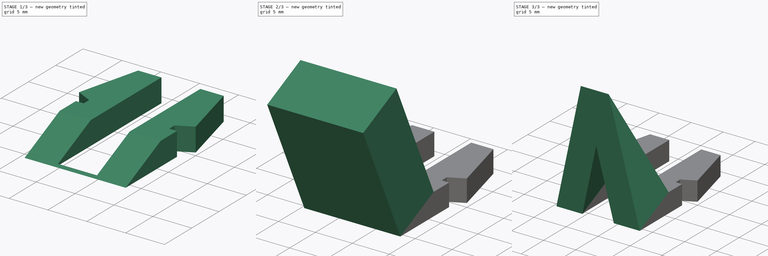
[diagram: build sequence overview — one tinted view per stage of 3, left to right]
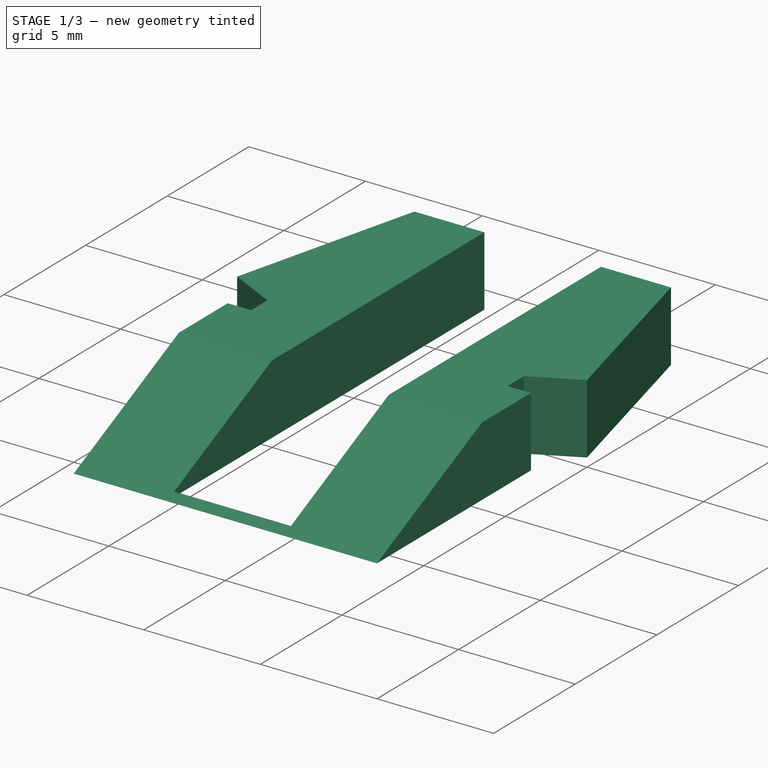
[diagram: stage 1 of 3 — iso view after this stage's code; geometry added in this stage tinted green]
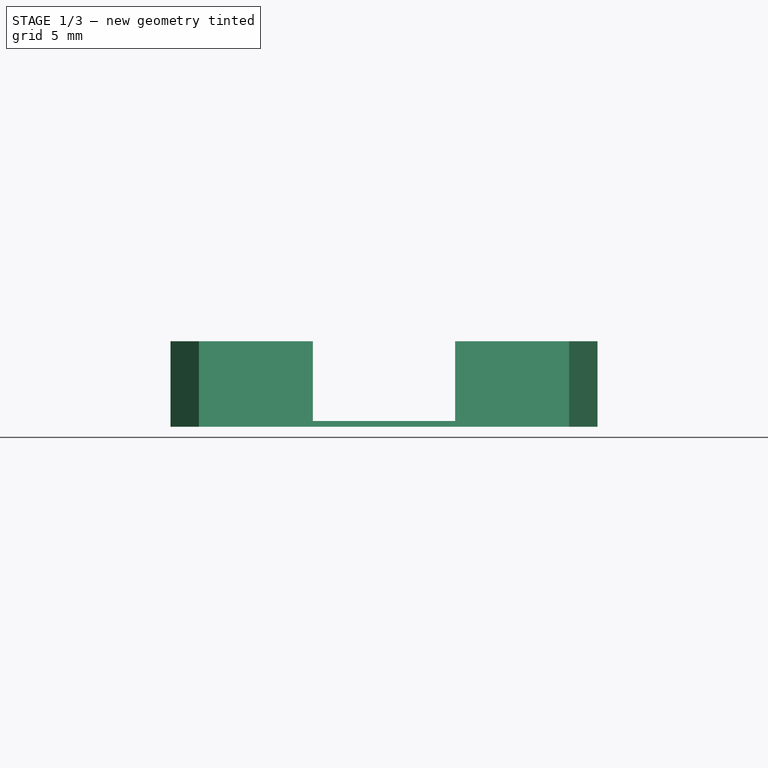
[diagram: stage 1 of 3 — front view after this stage's code; geometry added in this stage tinted green]
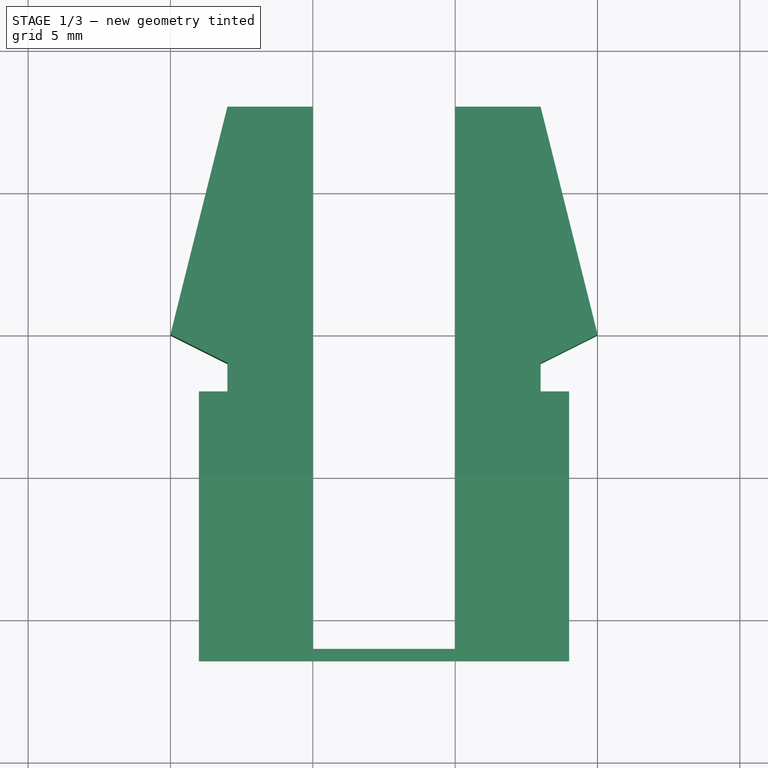
[diagram: stage 1 of 3 — top view after this stage's code; geometry added in this stage tinted green]
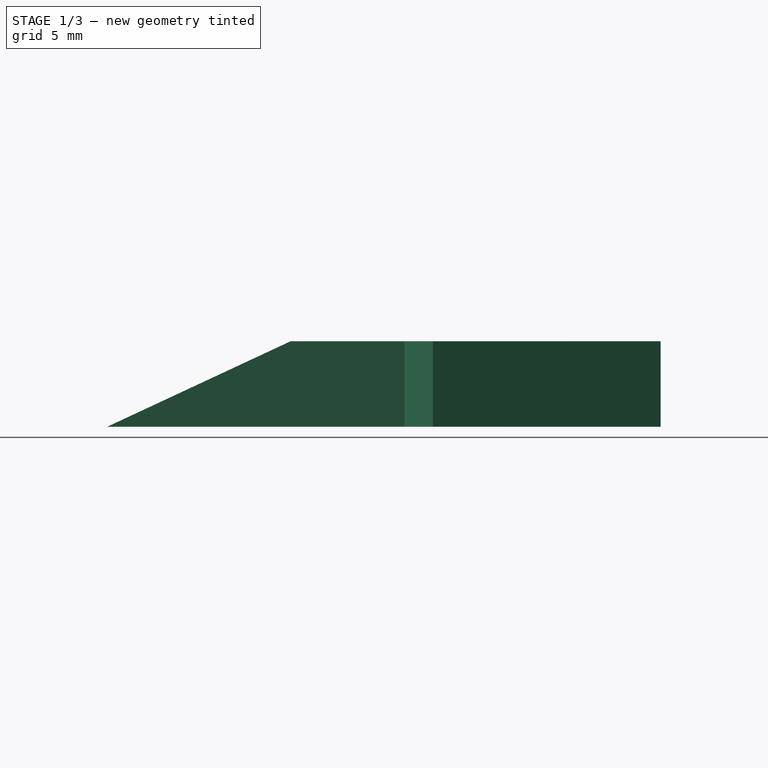
[diagram: stage 1 of 3 — right view after this stage's code; geometry added in this stage tinted green]
FCSTD DOCUMENT  (FreeCAD 0.20R)
Label: plafon_holder_clip
License: All rights reserved
LicenseURL: http://en.wikipedia.org/wiki/All_rights_reserved
objects: Sketcher::SketchObject×5, PartDesign::Pocket×3, PartDesign::Pad×2, PartDesign::Body×1
note: 16 computed .brp shape members not serialized (recipe doc carries the construction recipe); baked Part::Feature solids carry a one-line shape summary decoded from their .brp

FEATURE [Sketcher::SketchObject] Sketch
  FullyConstrained = true
  MapMode = 5
  Support = -> [XY_Plane]
  sketch-geometry (26):
    g0: LineSegment StartX=0 StartY=0 StartZ=0 EndX=2 EndY=8 EndZ=0
    g1: LineSegment StartX=2 StartY=8 StartZ=0 EndX=5 EndY=8 EndZ=0
    g2: LineSegment StartX=5 StartY=8 StartZ=0 EndX=5 EndY=-11 EndZ=0
    g3: LineSegment StartX=0 StartY=0 StartZ=0 EndX=2 EndY=-1 EndZ=0
    g4: LineSegment StartX=2 StartY=-1 StartZ=0 EndX=2 EndY=-2 EndZ=0
    g5: LineSegment StartX=2 StartY=-2 StartZ=0 EndX=1 EndY=-2 EndZ=0
    g6: LineSegment StartX=1 StartY=-2 StartZ=0 EndX=1 EndY=-12 EndZ=0
    g7: LineSegment StartX=1 StartY=-12 StartZ=0 EndX=14 EndY=-12 EndZ=0
    g8: LineSegment StartX=2 StartY=-2 StartZ=0 EndX=5 EndY=-2 EndZ=0
    g9: LineSegment StartX=2 StartY=-2 StartZ=0 EndX=2 EndY=8 EndZ=0
    g10: LineSegment StartX=0 StartY=0 StartZ=0 EndX=5 EndY=0 EndZ=0
    g11: LineSegment StartX=2 StartY=-1 StartZ=0 EndX=2 EndY=0 EndZ=0
    g12: LineSegment StartX=15 StartY=-5e-16 StartZ=0 EndX=13 EndY=8 EndZ=0
    g13: LineSegment StartX=13 StartY=8 StartZ=0 EndX=10 EndY=8 EndZ=0
    g14: LineSegment StartX=10 StartY=8 StartZ=0 EndX=10 EndY=-11 EndZ=0
    g15: LineSegment StartX=15 StartY=-5e-16 StartZ=0 EndX=13 EndY=-1 EndZ=0
    g16: LineSegment StartX=13 StartY=-1 StartZ=0 EndX=13 EndY=-2 EndZ=0
    g17: LineSegment StartX=13 StartY=-2 StartZ=0 EndX=14 EndY=-2 EndZ=0
    g18: LineSegment StartX=14 StartY=-2 StartZ=0 EndX=14 EndY=-12 EndZ=0
    g19: LineSegment StartX=13 StartY=-2 StartZ=0 EndX=10 EndY=-2 EndZ=0
    g20: LineSegment StartX=13 StartY=-2 StartZ=0 EndX=13 EndY=8 EndZ=0
    g21: LineSegment StartX=15 StartY=-5e-16 StartZ=0 EndX=10 EndY=-5e-16 EndZ=0
    g22: LineSegment StartX=13 StartY=-1 StartZ=0 EndX=13 EndY=-4e-16 EndZ=0
    g23: LineSegment StartX=5 StartY=8 StartZ=0 EndX=10 EndY=8 EndZ=0
    g24: LineSegment StartX=5 StartY=-11 StartZ=0 EndX=10 EndY=-11 EndZ=0
    g25: LineSegment StartX=5 StartY=-11 StartZ=0 EndX=5 EndY=-12 EndZ=0
  constraints (74):
    c: Coincident(g0,g-1)
    c: Coincident(g1,g0)
    c: Horizontal(g1)
    c: Coincident(g2,g1)
    c: Vertical(g2)
    c: Coincident(g3,g0)
    c: Coincident(g4,g3)
    c: Coincident(g5,g4)
    c: Coincident(g6,g5)
    c: Vertical(g6)
    c: Coincident(g7,g6)
    c: Vertical(g4)
    c: Horizontal(g5)
    c: Coincident(g8,g4)
    c: PointOnObject(g8,g2)
    c: Horizontal(g8)
    c: Vertical(g9)
    c: Distance(g9) = 10
    c: Coincident(g10,g0)
    c: PointOnObject(g10,g2)
    c: Horizontal(g10)
    c: Distance(g10) = 5
    c: Distance(g8) = 3
    c: Distance(g4) = 1
    c: Distance(g5) = 1
    c: Coincident(g11,g3)
    c: PointOnObject(g11,g10)
    c: Vertical(g11)
    c: Distance(g11) = 1
    c: Coincident(g9,g0)
    c: Coincident(g4,g9)
    c: Distance(g6) = 10
    c: Coincident(g13,g12)
    c: Horizontal(g13)
    c: Coincident(g14,g13)
    c: Vertical(g14)
    c: Coincident(g15,g12)
    c: Coincident(g16,g15)
    c: Coincident(g17,g16)
    c: Coincident(g18,g17)
    c: Vertical(g18)
    c: Vertical(g16)
    c: Horizontal(g17)
    c: Coincident(g19,g16)
    c: PointOnObject(g19,g14)
    c: Horizontal(g19)
    c: Vertical(g20)
    c: Distance(g20) = 10
    c: Coincident(g21,g12)
    c: PointOnObject(g21,g14)
    c: Horizontal(g21)
    c: Distance(g21) = 5
    c: Distance(g19) = 3
    c: Distance(g16) = 1
    c: Distance(g17) = 1
    c: Coincident(g22,g15)
    c: PointOnObject(g22,g21)
    c: Vertical(g22)
    c: Distance(g22) = 1
    c: Coincident(g20,g12)
    c: Coincident(g16,g20)
    c: Coincident(g23,g1)
    c: Coincident(g23,g13)
    c: Horizontal(g23)
    c: Distance(g23) = 5
    c: Coincident(g18,g7)
    c: Coincident(g24,g2)
    c: Coincident(g24,g14)
    c: Horizontal(g24)
    c: Coincident(g25,g2)
    c: PointOnObject(g25,g7)
    c: Vertical(g25)
    c: Distance(g25) = 1
    c: Horizontal(g7)
FEATURE [PartDesign::Pad] Pad
  Direction = (0,0,1)
  Length = 3
  Length2 = 10
  Profile = -> Sketch
  ReferenceAxis = -> Sketch [N_Axis]
  Type = 0
FEATURE [Sketcher::SketchObject] Sketch001
  ExternalGeometry = -> [Pad]
  FullyConstrained = true
  MapMode = 5
  Placement = pos=(14,0,0) rot=(0.57735,0.57735,0.57735;2.0944rad)
  Support = -> [Pad]
  sketch-geometry (6):
    g0: LineSegment StartX=-2 StartY=3 StartZ=0 EndX=-5 EndY=3 EndZ=0
    g1: LineSegment StartX=-5 StartY=3 StartZ=0 EndX=-11.4335 EndY=0 EndZ=0
    g2: LineSegment StartX=-11.4335 StartY=0 StartZ=0 EndX=-12 EndY=0 EndZ=0
    g3: LineSegment StartX=-12 StartY=0 StartZ=0 EndX=-12 EndY=3 EndZ=0
    g4: LineSegment StartX=-12 StartY=3 StartZ=0 EndX=-5 EndY=3 EndZ=0
    g5: LineSegment StartX=-5 StartY=3 StartZ=0 EndX=-3.60108 EndY=0 EndZ=0
  constraints (15):
    c: Coincident(g0,g-3)
    c: Horizontal(g0)
    c: Distance(g0) = 3
    c: Coincident(g0,g1)
    c: PointOnObject(g1,g-1)
    c: Coincident(g1,g2)
    c: Coincident(g2,g-4)
    c: Coincident(g2,g3)
    c: Coincident(g3,g-4)
    c: Coincident(g3,g4)
    c: Coincident(g4,g1)
    c: Coincident(g5,g1)
    c: PointOnObject(g5,g-1)
    c: Perpendicular(g5,g1)
    c: Angle(g-1,g5) = 2.00713
FEATURE [PartDesign::Pocket] Pocket
  BaseFeature = -> Pad
  Direction = (-1,0,0)
  Length = 5
  Length2 = 5
  Profile = -> Sketch001
  ReferenceAxis = -> Sketch001 [N_Axis]
  Type = 1
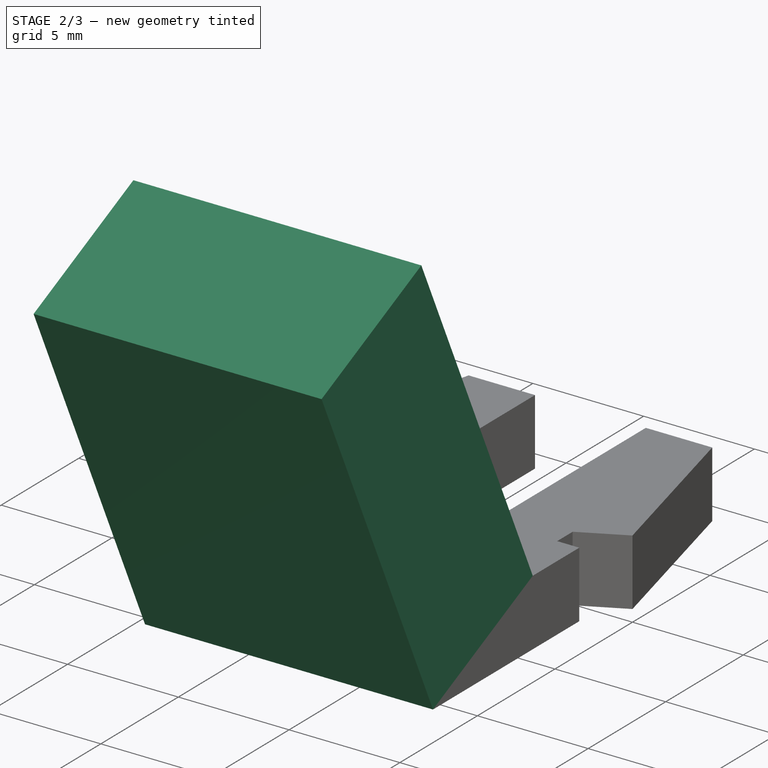
[diagram: stage 2 of 3 — iso view after this stage's code; geometry added in this stage tinted green]
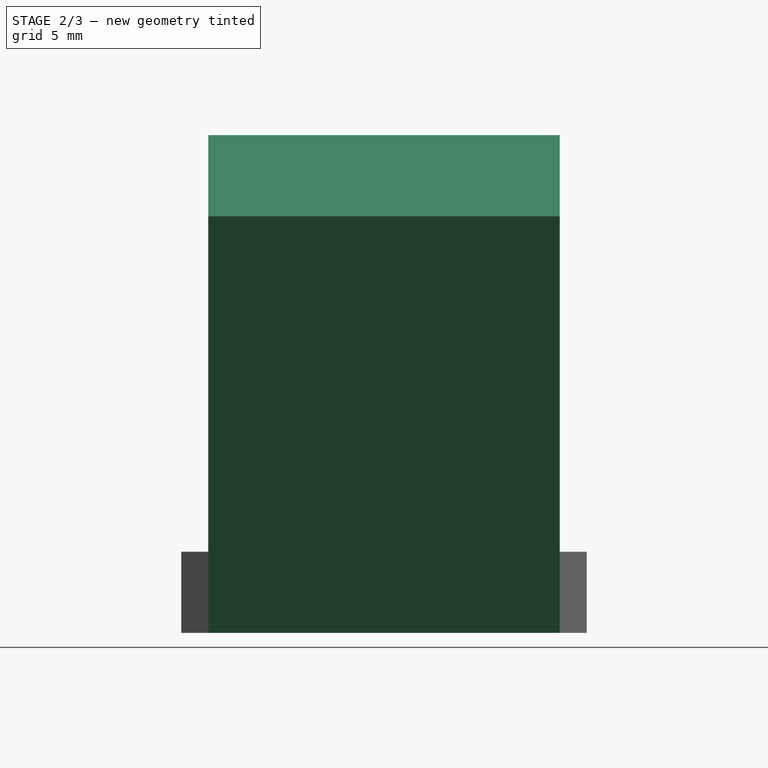
[diagram: stage 2 of 3 — front view after this stage's code; geometry added in this stage tinted green]
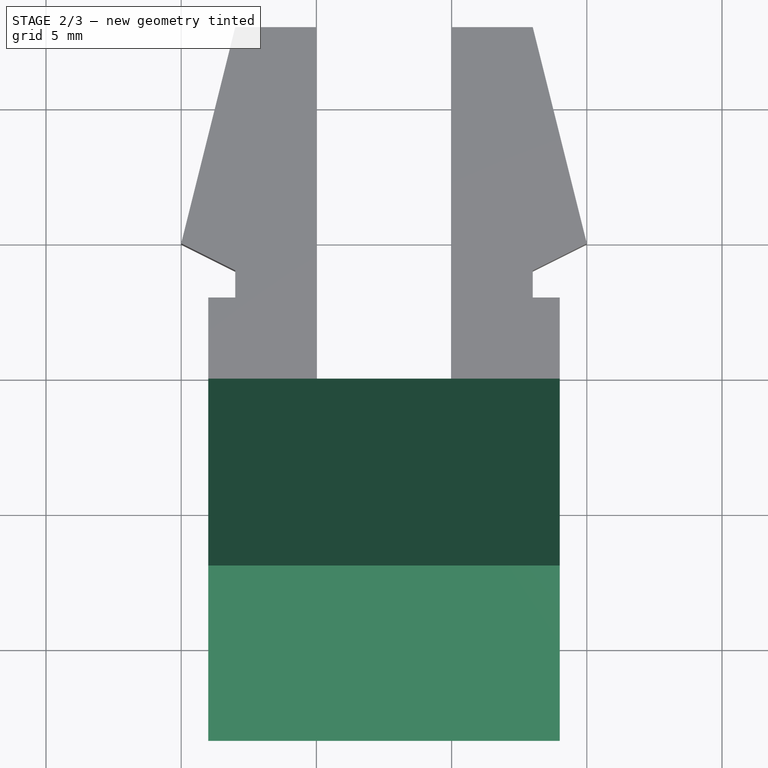
[diagram: stage 2 of 3 — top view after this stage's code; geometry added in this stage tinted green]
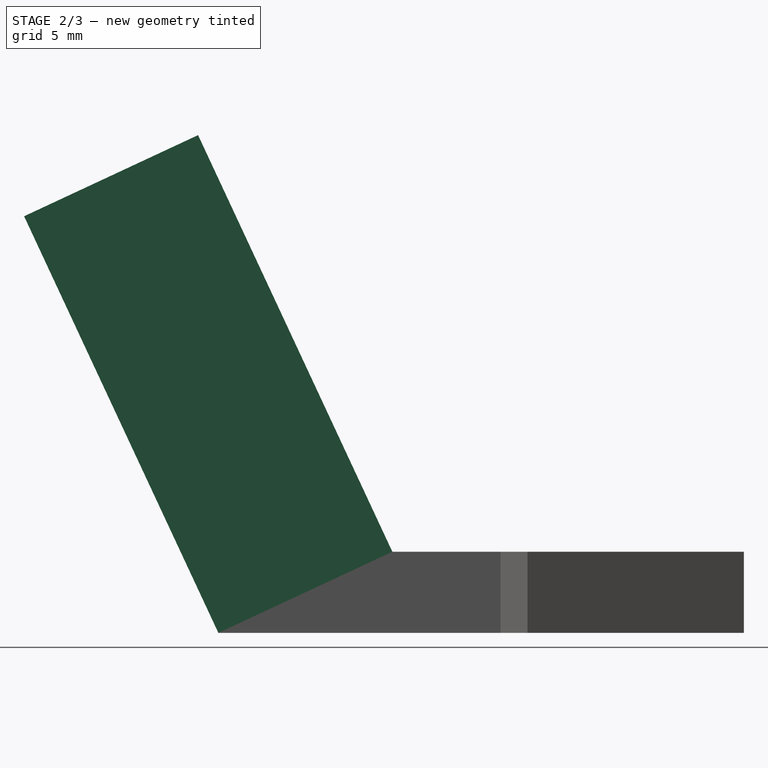
[diagram: stage 2 of 3 — right view after this stage's code; geometry added in this stage tinted green]
FEATURE [Sketcher::SketchObject] Sketch002
  ExternalGeometry = -> [Pocket]
  FullyConstrained = true
  MapMode = 5
  Placement = pos=(0,-2.0421,4.37929) rot=(1,0,0;0.436332rad)
  Support = -> [Pocket]
  sketch-geometry (4):
    g0: LineSegment StartX=1 StartY=-3.26368 StartZ=0 EndX=14 EndY=-3.26368 EndZ=0
    g1: LineSegment StartX=14 StartY=-3.26368 StartZ=0 EndX=14 EndY=-10.3623 EndZ=0
    g2: LineSegment StartX=14 StartY=-10.3623 StartZ=0 EndX=1 EndY=-10.3623 EndZ=0
    g3: LineSegment StartX=1 StartY=-10.3623 StartZ=0 EndX=1 EndY=-3.26368 EndZ=0
  constraints (10):
    c: Coincident(g0,g1)
    c: Coincident(g1,g2)
    c: Coincident(g2,g3)
    c: Coincident(g3,g0)
    c: Horizontal(g0)
    c: Horizontal(g2)
    c: Vertical(g1)
    c: Vertical(g3)
    c: Coincident(g0,g-3)
    c: Coincident(g1,g-4)
FEATURE [PartDesign::Pad] Pad001
  BaseFeature = -> Pocket
  Direction = (0,-0.422618,0.906308)
  Length = 17
  Length2 = 10
  Profile = -> Sketch002
  ReferenceAxis = -> Sketch002 [N_Axis]
  Type = 0
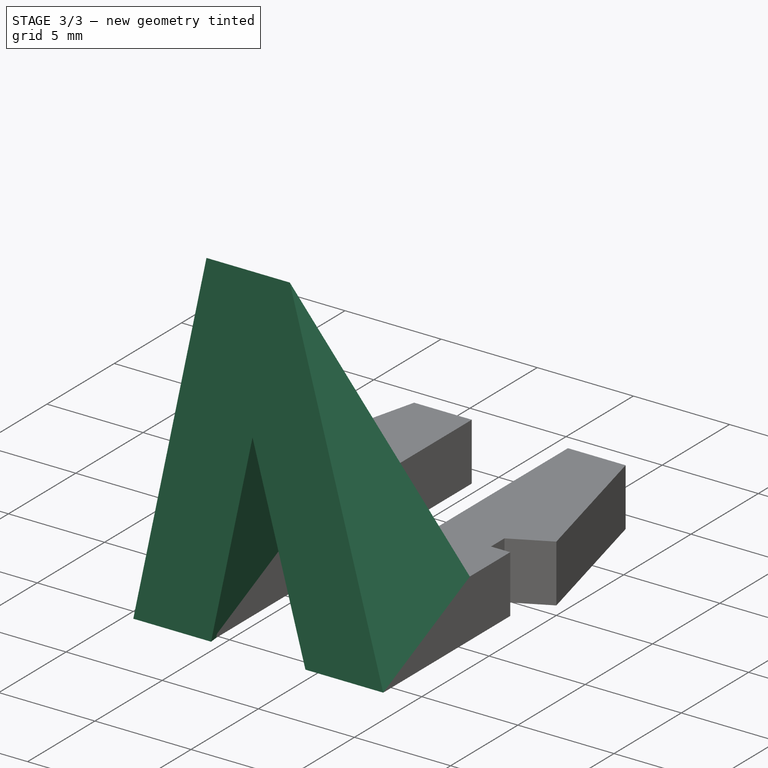
[diagram: stage 3 of 3 — iso view after this stage's code; geometry added in this stage tinted green]
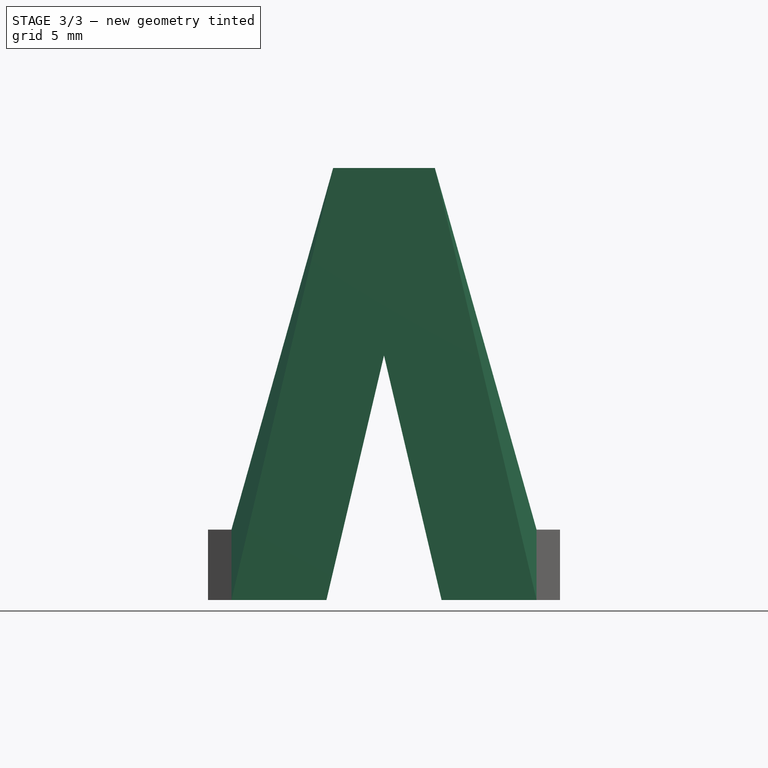
[diagram: stage 3 of 3 — front view after this stage's code; geometry added in this stage tinted green]
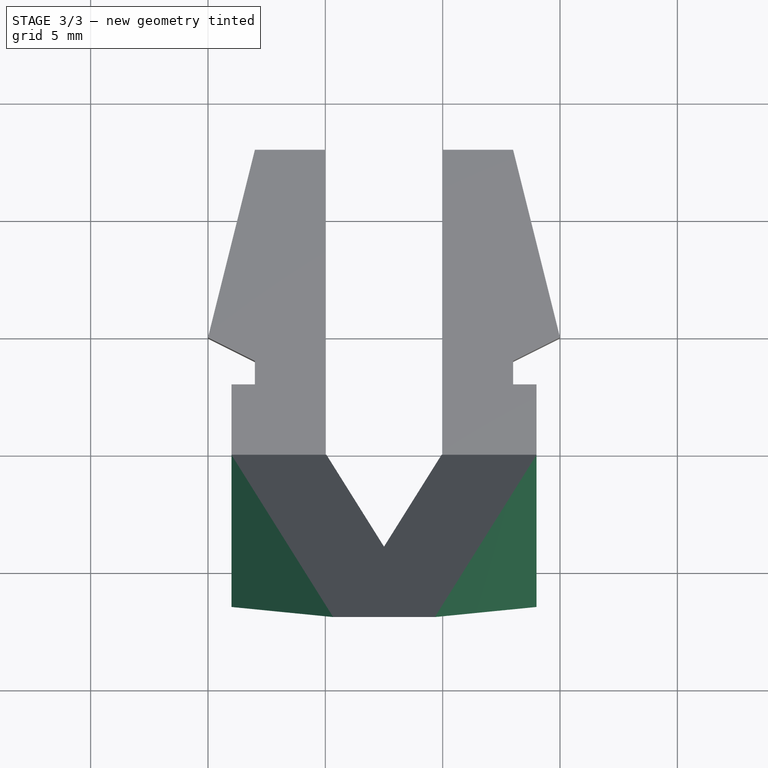
[diagram: stage 3 of 3 — top view after this stage's code; geometry added in this stage tinted green]
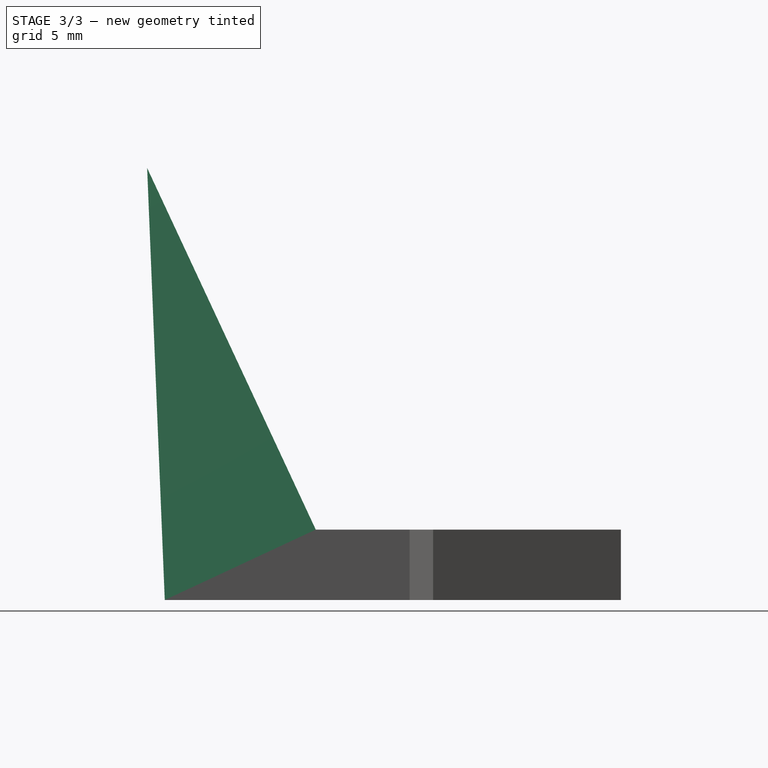
[diagram: stage 3 of 3 — right view after this stage's code; geometry added in this stage tinted green]
FEATURE [Sketcher::SketchObject] Sketch003
  ExternalGeometry = -> [Pad001]
  FullyConstrained = true
  MapMode = 5
  Placement = pos=(14,0,0) rot=(0.57735,0.57735,0.57735;2.0944rad)
  Support = -> [Pad001]
  sketch-geometry (3):
    g0: LineSegment StartX=-12.1845 StartY=18.4072 StartZ=0 EndX=-11.4335 EndY=0 EndZ=0
    g1: LineSegment StartX=-11.4335 StartY=0 StartZ=0 EndX=-18.618 EndY=15.4072 EndZ=0
    g2: LineSegment StartX=-18.618 StartY=15.4072 StartZ=0 EndX=-12.1845 EndY=18.4072 EndZ=0
  constraints (6):
    c: Coincident(g0,g-3)
    c: Coincident(g0,g-4)
    c: Coincident(g1,g0)
    c: Coincident(g1,g-4)
    c: Coincident(g2,g1)
    c: Coincident(g2,g0)
FEATURE [PartDesign::Pocket] Pocket001
  BaseFeature = -> Pad001
  Direction = (-1,0,0)
  Length = 5
  Length2 = 5
  Profile = -> Sketch003
  ReferenceAxis = -> Sketch003 [N_Axis]
  Type = 1
FEATURE [Sketcher::SketchObject] Sketch004
  ExternalGeometry = -> [Pocket001]
  FullyConstrained = true
  MapMode = 5
  Placement = pos=(0,-2.9579,-1.37929) rot=(0,0.5373,0.843391;3.14159rad)
  Support = -> [Pocket001]
  sketch-geometry (12):
    g0: LineSegment StartX=-14 StartY=21.832 StartZ=0 EndX=-9.66667 EndY=21.832 EndZ=0
    g1: LineSegment StartX=-5.33333 StartY=21.832 StartZ=0 EndX=-1 EndY=21.832 EndZ=0
    g2: LineSegment StartX=-5.33333 StartY=21.832 StartZ=0 EndX=-9.66667 EndY=21.832 EndZ=0
    g3: LineSegment StartX=-14 StartY=4.83201 StartZ=0 EndX=-14 EndY=21.832 EndZ=0
    g4: LineSegment StartX=-9.66667 StartY=21.832 StartZ=0 EndX=-14 EndY=4.83201 EndZ=0
    g5: LineSegment StartX=-5.33333 StartY=21.832 StartZ=0 EndX=-1 EndY=4.83201 EndZ=0
    g6: LineSegment StartX=-1 StartY=4.83201 StartZ=0 EndX=-1 EndY=21.832 EndZ=0
    g7: LineSegment StartX=-9.66667 StartY=21.832 StartZ=0 EndX=-7.5 EndY=14.4565 EndZ=0
    g8: LineSegment StartX=-5.33333 StartY=21.832 StartZ=0 EndX=-7.5 EndY=14.4565 EndZ=0
    g9: LineSegment StartX=-10 StartY=4.6488 StartZ=0 EndX=-5 EndY=4.6488 EndZ=0
    g10: LineSegment StartX=-5 StartY=4.6488 StartZ=0 EndX=-7.5 EndY=14.4565 EndZ=0
    g11: LineSegment StartX=-7.5 StartY=14.4565 StartZ=0 EndX=-10 EndY=4.6488 EndZ=0
  constraints (27):
    c: Coincident(g1,g-6)
    c: Coincident(g2,g1)
    c: Coincident(g2,g0)
    c: Equal(g0,g2)
    c: Equal(g2,g1)
    c: Coincident(g0,g-5)
    c: Horizontal(g2)
    c: Horizontal(g0)
    c: Coincident(g3,g-5)
    c: Coincident(g3,g0)
    c: Coincident(g4,g0)
    c: Coincident(g4,g3)
    c: Coincident(g5,g1)
    c: Coincident(g5,g-6)
    c: Coincident(g6,g5)
    c: Coincident(g6,g1)
    c: Coincident(g7,g0)
    c: Coincident(g8,g1)
    c: Coincident(g8,g7)
    c: Equal(g8,g7)
    c: Coincident(g9,g-4)
    c: Coincident(g9,g-4)
    c: Coincident(g10,g9)
    c: Coincident(g10,g7)
    c: Coincident(g11,g10)
    c: Coincident(g11,g9)
    c: Parallel(g11,g4)
FEATURE [PartDesign::Pocket] Pocket002
  BaseFeature = -> Pocket001
  Direction = (0,-0.906308,-0.422618)
  Length = 5
  Length2 = 5
  Profile = -> Sketch004
  ReferenceAxis = -> Sketch004 [N_Axis]
  Type = 1
FEATURE [PartDesign::Body] Body
  Group = -> [Sketch,Pad,Sketch001,Pocket,Sketch002,Pad001,Sketch003,Pocket001,Sketch004,Pocket002]
  Origin = -> Origin
  Tip = -> Pocket002
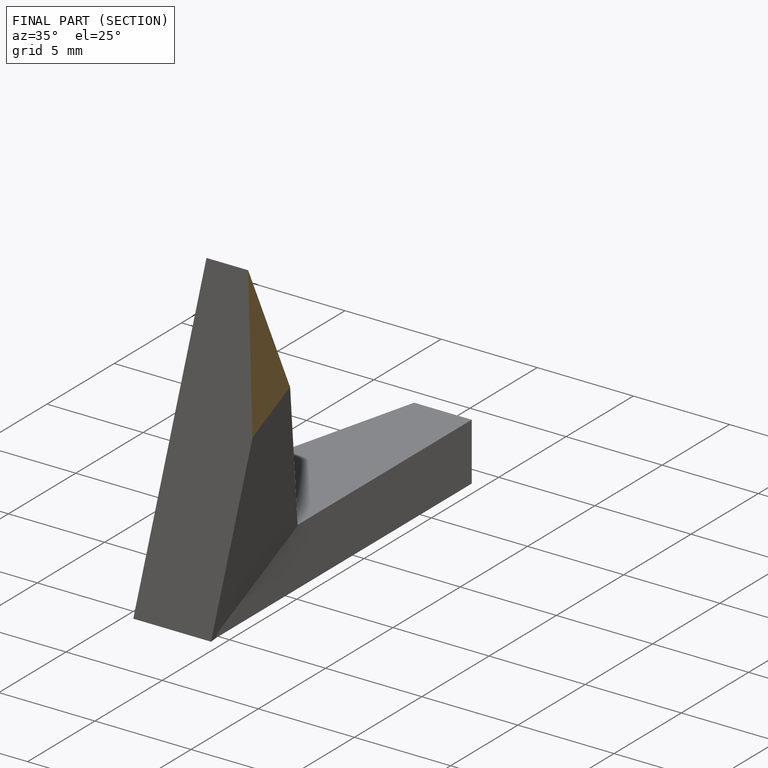
[diagram: finished part — half-section view (interior)]
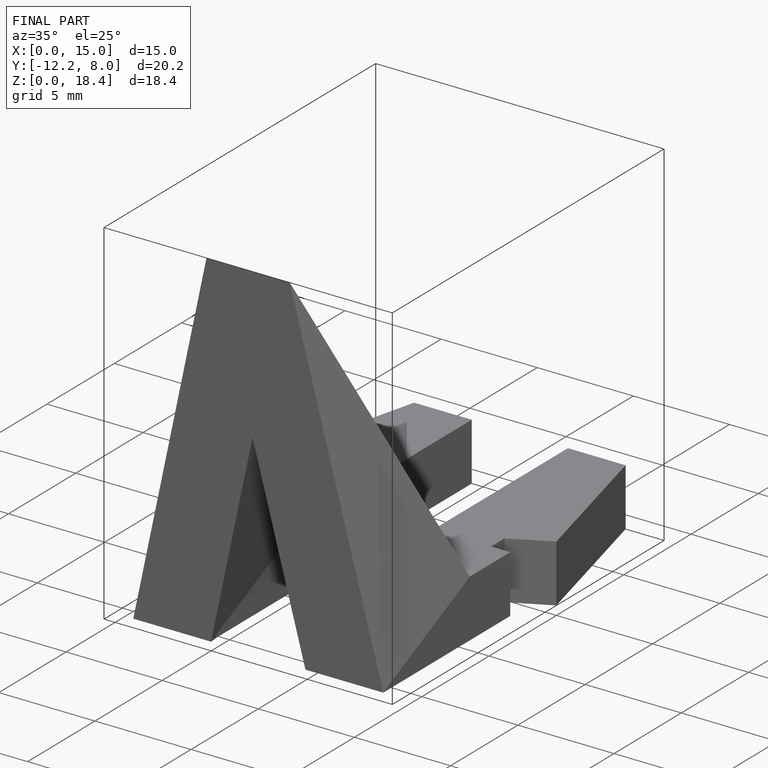
[diagram: finished part — iso view with bounding-box wireframe]
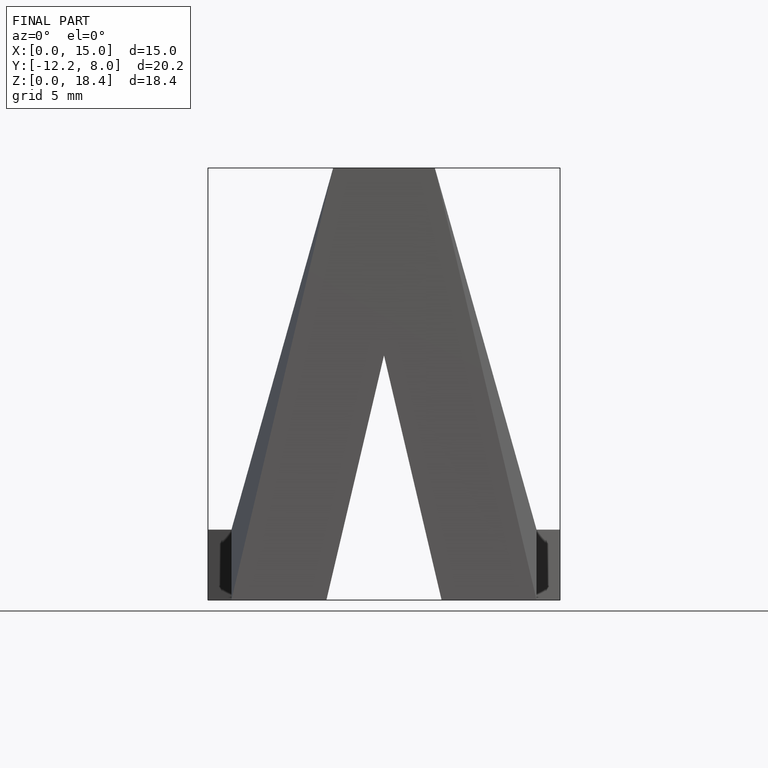
[diagram: finished part — front view with bounding-box wireframe]
